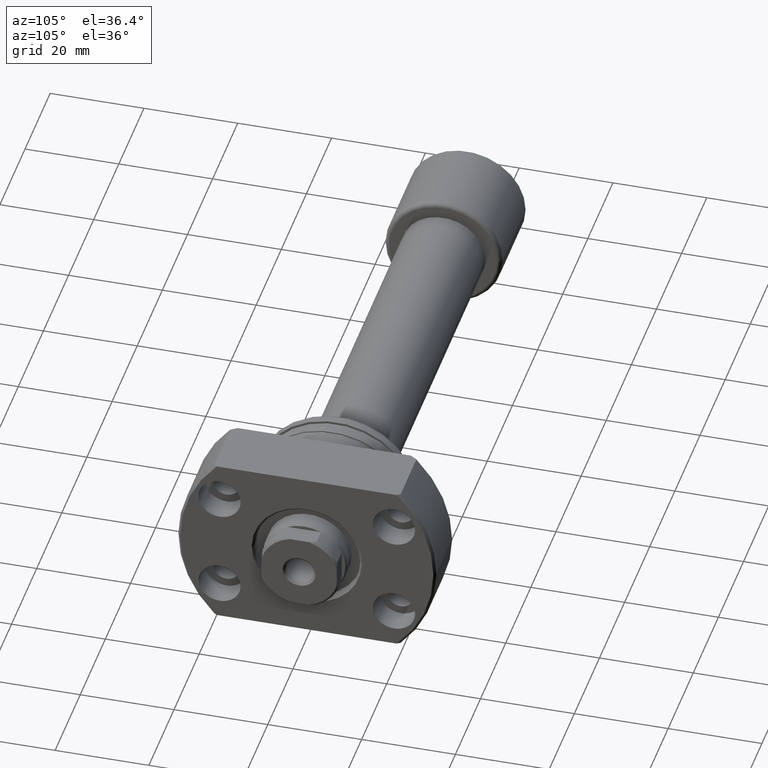
[diagram: clean part render]
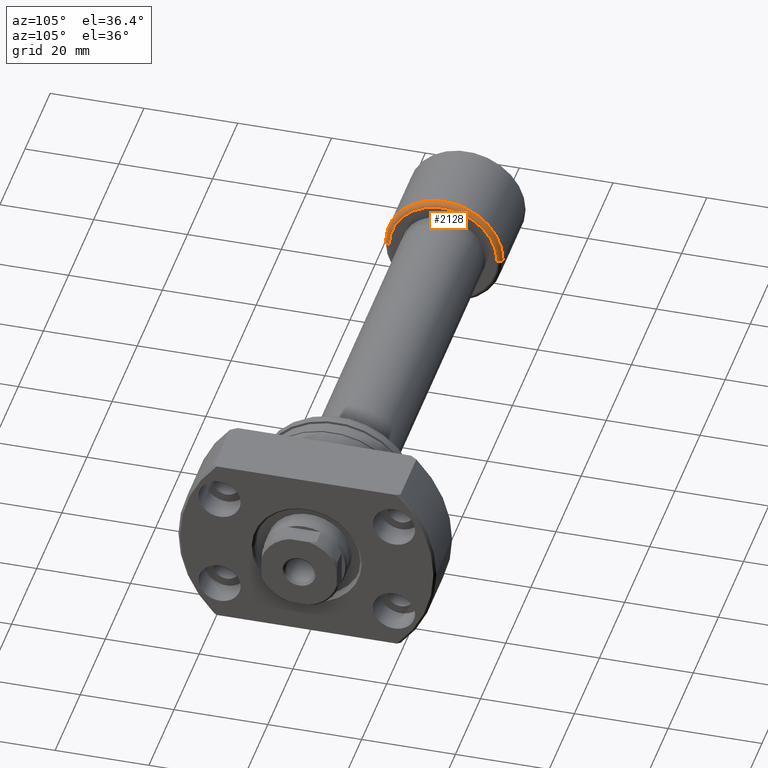
[diagram: same view with one face highlighted and labeled with its STEP entity id]
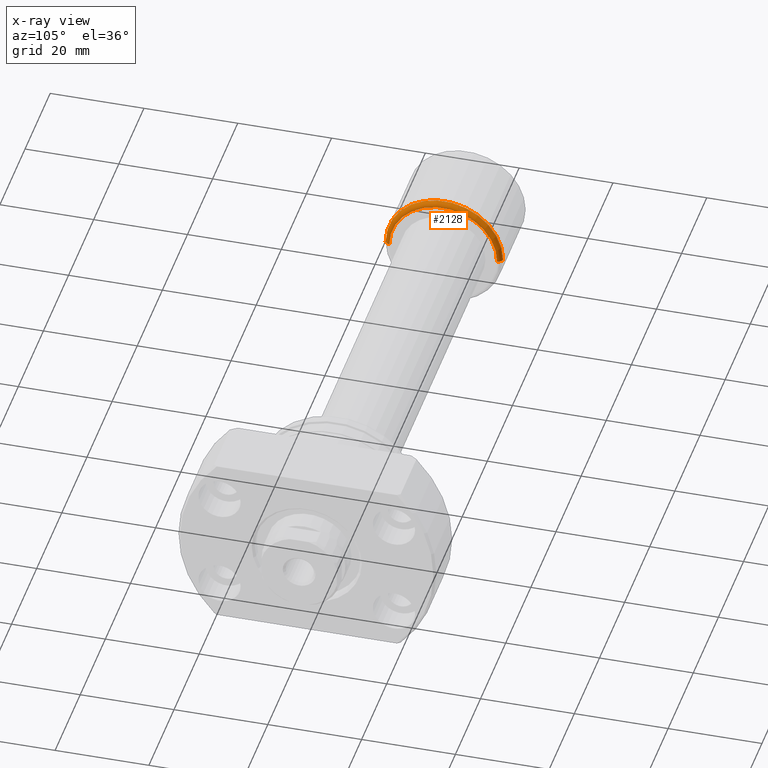
[diagram: x-ray of the same camera — body ghosted, the highlighted face saturated]
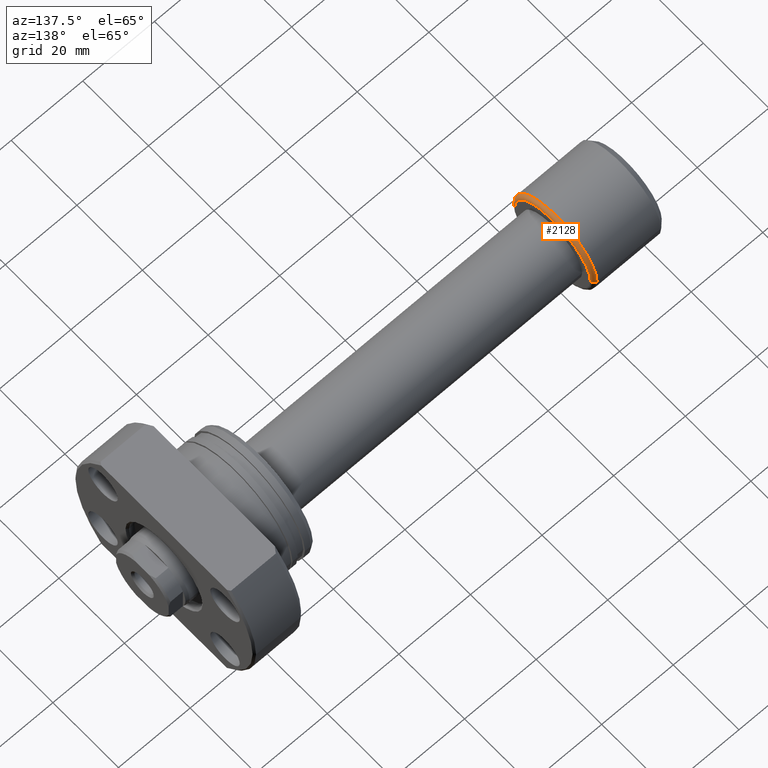
[diagram: same view with one face highlighted and labeled with its STEP entity id]
A machine part, auxiliary view. The second image highlights one B-rep face of the part: STEP entity #2128.
The next image is the same camera in x-ray: the body ghosted, the highlighted face saturated — about 0% of this face is hidden behind the body in this view.
A second angle (auxiliary view) of the same face is appended — the face is thin or edge-on in the first view.
In plain terms, the highlighted toroidal blend (fillet) surface has major radius 11.5 mm and minor (blend) radius 1 mm.
Its self-contained STEP definition (entity closure, byte-faithful):
#85 = EDGE_CURVE ( 'NONE', #1915, #1418, #2875, .T. ) ;
#177 = EDGE_LOOP ( 'NONE', ( #2793, #1780, #2599, #797 ) ) ;
#198 = EDGE_CURVE ( 'NONE', #1915, #1616, #3088, .T. ) ;
#396 = DIRECTION ( 'NONE',  ( 0.000000000000000000, -1.000000000000000000, 0.000000000000000000 ) ) ;
#436 = FACE_OUTER_BOUND ( 'NONE', #177, .T. ) ;
#474 = DIRECTION ( 'NONE',  ( 1.069542322069065955E-17, -1.000000000000000000, 0.000000000000000000 ) ) ;
#544 = DIRECTION ( 'NONE',  ( 0.000000000000000000, -1.000000000000000000, 0.000000000000000000 ) ) ;
#609 = CIRCLE ( 'NONE', #976, 1.000000000000000888 ) ;
#613 = CARTESIAN_POINT ( 'NONE',  ( 19.39999999999999503, 11.50000000000000000, 1.408343819019456176E-15 ) ) ;
#666 = DIRECTION ( 'NONE',  ( 0.000000000000000000, 0.000000000000000000, -1.000000000000000000 ) ) ;
#692 = VERTEX_POINT ( 'NONE', #1215 ) ;
#696 = CARTESIAN_POINT ( 'NONE',  ( 20.39999999999999503, 11.50000000000000000, 1.469576158976823947E-15 ) ) ;
#747 = CARTESIAN_POINT ( 'NONE',  ( 19.39999999999999503, -12.50000000000000000, 0.000000000000000000 ) ) ;
#797 = ORIENTED_EDGE ( 'NONE', *, *, #85, .F. ) ;
#911 = CIRCLE ( 'NONE', #2713, 12.50000000000000000 ) ;
#957 = CARTESIAN_POINT ( 'NONE',  ( 19.39999999999999503, 0.000000000000000000, 0.000000000000000000 ) ) ;
#976 = AXIS2_PLACEMENT_3D ( 'NONE', #613, #2059, #2673 ) ;
#1215 = CARTESIAN_POINT ( 'NONE',  ( 19.39999999999999503, 12.50000000000000000, 1.530808498934191521E-15 ) ) ;
#1237 = TOROIDAL_SURFACE ( 'NONE', #3023, 11.50000000000000000, 1.000000000000000888 ) ;
#1361 = AXIS2_PLACEMENT_3D ( 'NONE', #1776, #2504, #544 ) ;
#1418 = VERTEX_POINT ( 'NONE', #747 ) ;
#1518 = EDGE_CURVE ( 'NONE', #1418, #692, #911, .T. ) ;
#1616 = VERTEX_POINT ( 'NONE', #696 ) ;
#1652 = CARTESIAN_POINT ( 'NONE',  ( 20.39999999999999503, -11.50000000000000000, 0.000000000000000000 ) ) ;
#1661 = DIRECTION ( 'NONE',  ( -1.000000000000000000, 0.000000000000000000, 0.000000000000000000 ) ) ;
#1776 = CARTESIAN_POINT ( 'NONE',  ( 20.39999999999999503, 2.181866337020893623E-16, 0.000000000000000000 ) ) ;
#1780 = ORIENTED_EDGE ( 'NONE', *, *, #1924, .T. ) ;
#1915 = VERTEX_POINT ( 'NONE', #1652 ) ;
#1924 = EDGE_CURVE ( 'NONE', #1616, #692, #609, .T. ) ;
#1938 = DIRECTION ( 'NONE',  ( -1.000000000000000000, -1.069542322069065801E-17, -0.000000000000000000 ) ) ;
#2059 = DIRECTION ( 'NONE',  ( 1.309811581274509052E-33, -1.224646799147353207E-16, 1.000000000000000000 ) ) ;
#2128 = ADVANCED_FACE ( 'NONE', ( #436 ), #1237, .T. ) ;
#2147 = CARTESIAN_POINT ( 'NONE',  ( 19.39999999999999503, 2.074912104813986935E-16, 0.000000000000000000 ) ) ;
#2348 = DIRECTION ( 'NONE',  ( -1.000000000000000000, -1.069542322069065801E-17, -0.000000000000000000 ) ) ;
#2504 = DIRECTION ( 'NONE',  ( -1.000000000000000000, -1.069542322069065801E-17, -0.000000000000000000 ) ) ;
#2599 = ORIENTED_EDGE ( 'NONE', *, *, #1518, .F. ) ;
#2673 = DIRECTION ( 'NONE',  ( 0.000000000000000000, -1.000000000000000000, -1.224646799147353454E-16 ) ) ;
#2713 = AXIS2_PLACEMENT_3D ( 'NONE', #2147, #2348, #396 ) ;
#2793 = ORIENTED_EDGE ( 'NONE', *, *, #198, .T. ) ;
#2870 = CARTESIAN_POINT ( 'NONE',  ( 19.39999999999999503, -11.50000000000000000, 0.000000000000000000 ) ) ;
#2875 = CIRCLE ( 'NONE', #2927, 1.000000000000000888 ) ;
#2927 = AXIS2_PLACEMENT_3D ( 'NONE', #2870, #666, #1661 ) ;
#3023 = AXIS2_PLACEMENT_3D ( 'NONE', #957, #1938, #474 ) ;
#3088 = CIRCLE ( 'NONE', #1361, 11.50000000000000000 ) ;